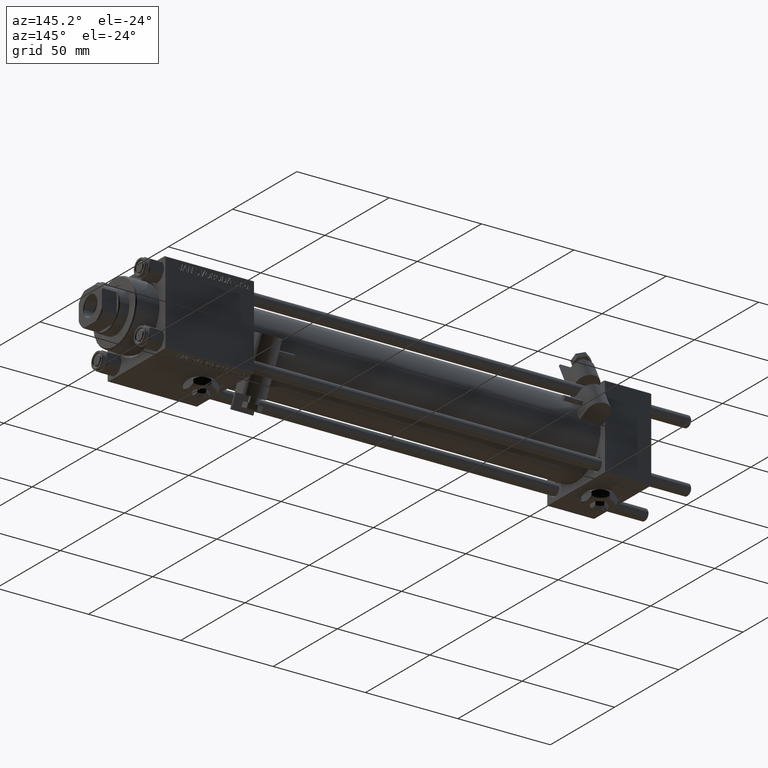
[diagram: clean part render]
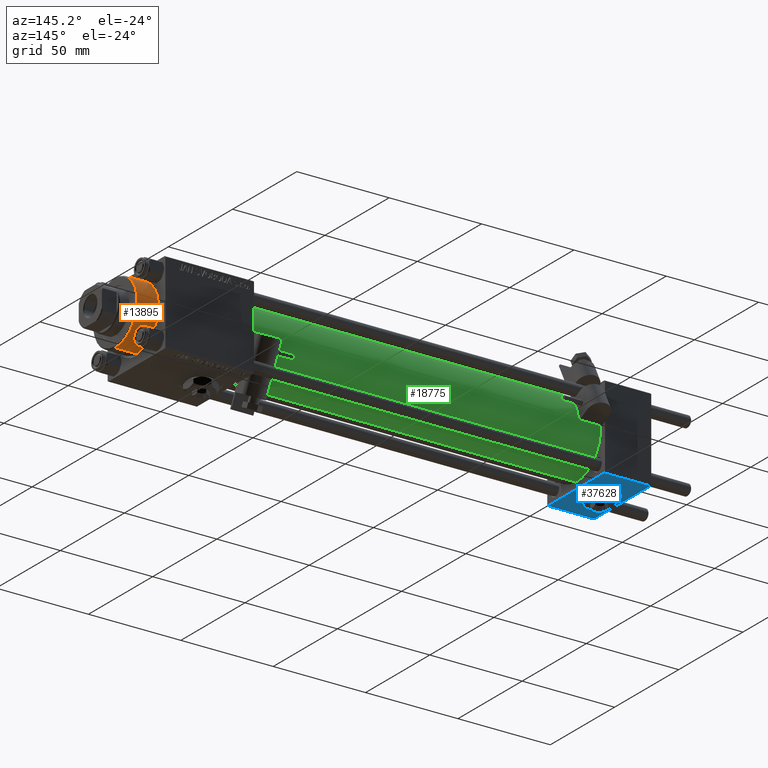
[diagram: same view with three faces highlighted in distinct colors, each labeled with its STEP entity id]
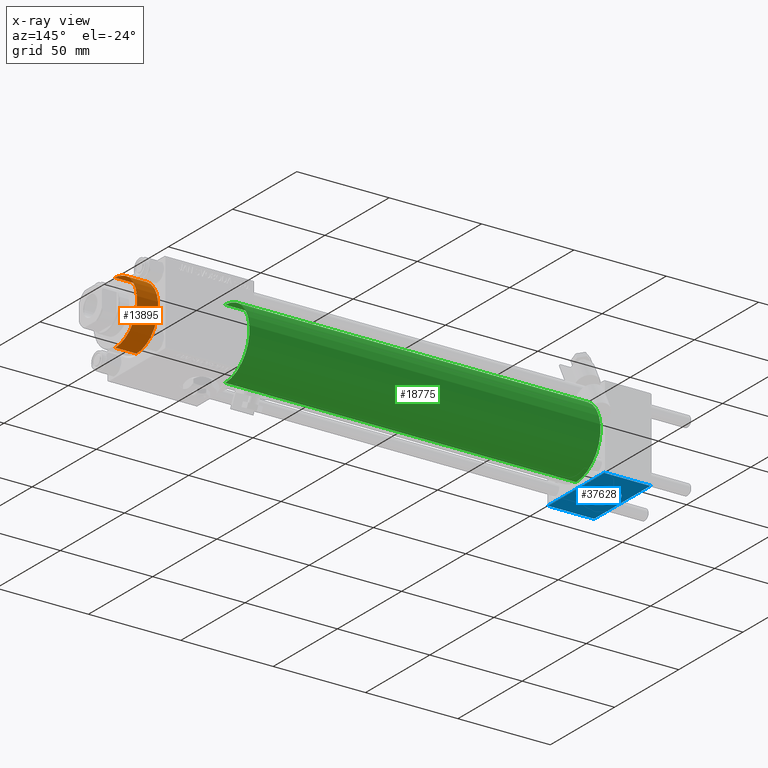
[diagram: x-ray of the same camera — body ghosted, the three highlighted faces saturated]
A machine part, auxiliary view with three faces highlighted in distinct colors.
The next image is the same camera in x-ray (body ghosted, the three faces saturated) — at least one of them is partly hidden behind the body in this view.
Their STEP definitions:

[orange] entity #13895 — the highlighted cylindrical surface (partial cylindrical patch) has radius 17 mm, axis along (-1, -0, 0).
#496 = CARTESIAN_POINT ( 'NONE',  ( -17.00000000000000000, 0.000000000000000000, 40.70000000000000284 ) ) ;
#3923 = EDGE_CURVE ( 'NONE', #50216, #13076, #45804, .T. ) ;
#4052 = CYLINDRICAL_SURFACE ( 'NONE', #18635, 17.00000000000000000 ) ;
#7762 = CARTESIAN_POINT ( 'NONE',  ( 17.00000000000000000, 2.081899558550500280E-15, 40.19999999999999574 ) ) ;
#8366 = ORIENTED_EDGE ( 'NONE', *, *, #37697, .T. ) ;
#10129 = VECTOR ( 'NONE', #40377, 1000.000000000000000 ) ;
#11126 = CARTESIAN_POINT ( 'NONE',  ( 17.00000000000000000, 2.081899558550500280E-15, 28.69999999999999929 ) ) ;
#11692 = CARTESIAN_POINT ( 'NONE',  ( 0.000000000000000000, 0.000000000000000000, 28.69999999999999929 ) ) ;
#13076 = VERTEX_POINT ( 'NONE', #39769 ) ;
#13895 = ADVANCED_FACE ( 'NONE', ( #48750 ), #4052, .T. ) ;
#15368 = VERTEX_POINT ( 'NONE', #46184 ) ;
#18387 = DIRECTION ( 'NONE',  ( 1.000000000000000000, 0.000000000000000000, 0.000000000000000000 ) ) ;
#18635 = AXIS2_PLACEMENT_3D ( 'NONE', #28408, #20645, #24388 ) ;
#19446 = DIRECTION ( 'NONE',  ( 0.000000000000000000, 0.000000000000000000, 1.000000000000000000 ) ) ;
#20645 = DIRECTION ( 'NONE',  ( -0.000000000000000000, -0.000000000000000000, -1.000000000000000000 ) ) ;
#23464 = DIRECTION ( 'NONE',  ( 1.000000000000000000, 0.000000000000000000, 0.000000000000000000 ) ) ;
#24388 = DIRECTION ( 'NONE',  ( -1.000000000000000000, 0.000000000000000000, 0.000000000000000000 ) ) ;
#25253 = CARTESIAN_POINT ( 'NONE',  ( 17.00000000000000000, 2.081899558550500280E-15, 40.70000000000000284 ) ) ;
#25779 = LINE ( 'NONE', #25253, #33015 ) ;
#26091 = VERTEX_POINT ( 'NONE', #7762 ) ;
#28408 = CARTESIAN_POINT ( 'NONE',  ( 0.000000000000000000, 0.000000000000000000, 40.70000000000000284 ) ) ;
#29464 = ORIENTED_EDGE ( 'NONE', *, *, #45122, .T. ) ;
#31641 = CIRCLE ( 'NONE', #38379, 17.00000000000000000 ) ;
#33015 = VECTOR ( 'NONE', #37027, 1000.000000000000000 ) ;
#34953 = CARTESIAN_POINT ( 'NONE',  ( 0.000000000000000000, 0.000000000000000000, 40.19999999999999574 ) ) ;
#37027 = DIRECTION ( 'NONE',  ( -0.000000000000000000, -0.000000000000000000, -1.000000000000000000 ) ) ;
#37697 = EDGE_CURVE ( 'NONE', #26091, #50216, #25779, .T. ) ;
#38379 = AXIS2_PLACEMENT_3D ( 'NONE', #34953, #43804, #18387 ) ;
#39769 = CARTESIAN_POINT ( 'NONE',  ( -17.00000000000000000, 0.000000000000000000, 28.69999999999999929 ) ) ;
#39794 = AXIS2_PLACEMENT_3D ( 'NONE', #11692, #19446, #23464 ) ;
#40107 = EDGE_CURVE ( 'NONE', #15368, #13076, #44407, .T. ) ;
#40377 = DIRECTION ( 'NONE',  ( -0.000000000000000000, -0.000000000000000000, -1.000000000000000000 ) ) ;
#43804 = DIRECTION ( 'NONE',  ( 0.000000000000000000, 0.000000000000000000, -1.000000000000000000 ) ) ;
#44295 = EDGE_LOOP ( 'NONE', ( #29464, #8366, #51937, #48668 ) ) ;
#44407 = LINE ( 'NONE', #496, #10129 ) ;
#45122 = EDGE_CURVE ( 'NONE', #15368, #26091, #31641, .T. ) ;
#45804 = CIRCLE ( 'NONE', #39794, 17.00000000000000000 ) ;
#46184 = CARTESIAN_POINT ( 'NONE',  ( -17.00000000000000000, 0.000000000000000000, 40.19999999999999574 ) ) ;
#48668 = ORIENTED_EDGE ( 'NONE', *, *, #40107, .F. ) ;
#48750 = FACE_OUTER_BOUND ( 'NONE', #44295, .T. ) ;
#50216 = VERTEX_POINT ( 'NONE', #11126 ) ;
#51937 = ORIENTED_EDGE ( 'NONE', *, *, #3923, .T. ) ;

[blue] entity #37628 — the highlighted planar face has unit normal (0, 0, -1).
#1157 = LINE ( 'NONE', #30042, #8363 ) ;
#2189 = VERTEX_POINT ( 'NONE', #7006 ) ;
#2364 = LINE ( 'NONE', #7436, #15012 ) ;
#2779 = CARTESIAN_POINT ( 'NONE',  ( 12.50000000000000000, 5.035636875936204037E-15, -22.50000000000000000 ) ) ;
#3398 = EDGE_CURVE ( 'NONE', #33854, #20286, #4747, .T. ) ;
#4058 = EDGE_CURVE ( 'NONE', #40201, #11606, #2364, .T. ) ;
#4747 = CIRCLE ( 'NONE', #20144, 10.00000000000000178 ) ;
#6678 = DIRECTION ( 'NONE',  ( 0.000000000000000000, -1.734723475976806848E-16, -1.000000000000000000 ) ) ;
#7006 = CARTESIAN_POINT ( 'NONE',  ( 0.000000000000000000, 21.99999999999999289, -22.49999999999999645 ) ) ;
#7020 = DIRECTION ( 'NONE',  ( 1.000000000000000000, 0.000000000000000000, 0.000000000000000000 ) ) ;
#7436 = CARTESIAN_POINT ( 'NONE',  ( 0.000000000000000000, -21.99999999999998579, -22.50000000000000711 ) ) ;
#8363 = VECTOR ( 'NONE', #50397, 1000.000000000000000 ) ;
#9401 = AXIS2_PLACEMENT_3D ( 'NONE', #2779, #19095, #46686 ) ;
#10136 = VECTOR ( 'NONE', #7020, 1000.000000000000000 ) ;
#10709 = CARTESIAN_POINT ( 'NONE',  ( 0.000000000000000000, -21.99999999999997158, -22.50000000000000711 ) ) ;
#11606 = VERTEX_POINT ( 'NONE', #10709 ) ;
#12420 = FACE_BOUND ( 'NONE', #13319, .T. ) ;
#13319 = EDGE_LOOP ( 'NONE', ( #21424, #30996 ) ) ;
#13572 = CARTESIAN_POINT ( 'NONE',  ( 25.00000000000000000, 21.99999999999999289, -22.49999999999999645 ) ) ;
#13590 = EDGE_CURVE ( 'NONE', #2189, #11606, #1157, .T. ) ;
#13901 = LINE ( 'NONE', #24423, #35388 ) ;
#14570 = EDGE_CURVE ( 'NONE', #2189, #28048, #23071, .T. ) ;
#15012 = VECTOR ( 'NONE', #23757, 1000.000000000000000 ) ;
#15035 = CARTESIAN_POINT ( 'NONE',  ( 25.00000000000000000, 21.99999999999999289, -22.49999999999999645 ) ) ;
#15952 = EDGE_LOOP ( 'NONE', ( #43975, #23185, #31183, #33112 ) ) ;
#18591 = CARTESIAN_POINT ( 'NONE',  ( 25.00000000000000000, -21.99999999999997158, -22.50000000000000711 ) ) ;
#19095 = DIRECTION ( 'NONE',  ( 0.000000000000000000, -1.734723475976806848E-16, -1.000000000000000000 ) ) ;
#20144 = AXIS2_PLACEMENT_3D ( 'NONE', #43346, #6678, #22993 ) ;
#20286 = VERTEX_POINT ( 'NONE', #52768 ) ;
#21424 = ORIENTED_EDGE ( 'NONE', *, *, #44412, .F. ) ;
#21775 = CARTESIAN_POINT ( 'NONE',  ( 12.50000000000000178, -9.999999999999996447, -22.50000000000000000 ) ) ;
#22993 = DIRECTION ( 'NONE',  ( 0.000000000000000000, 1.000000000000000000, 0.000000000000000000 ) ) ;
#23071 = LINE ( 'NONE', #15035, #10136 ) ;
#23185 = ORIENTED_EDGE ( 'NONE', *, *, #14570, .T. ) ;
#23757 = DIRECTION ( 'NONE',  ( -1.000000000000000000, 0.000000000000000000, 0.000000000000000000 ) ) ;
#24423 = CARTESIAN_POINT ( 'NONE',  ( 25.00000000000000000, 22.50000000000000000, -22.49999999999999645 ) ) ;
#24782 = CIRCLE ( 'NONE', #9401, 10.00000000000000178 ) ;
#27667 = EDGE_CURVE ( 'NONE', #28048, #40201, #13901, .T. ) ;
#27682 = PLANE ( 'NONE',  #32183 ) ;
#28048 = VERTEX_POINT ( 'NONE', #13572 ) ;
#30042 = CARTESIAN_POINT ( 'NONE',  ( 0.000000000000000000, 22.50000000000000000, -22.49999999999999645 ) ) ;
#30996 = ORIENTED_EDGE ( 'NONE', *, *, #3398, .F. ) ;
#31183 = ORIENTED_EDGE ( 'NONE', *, *, #27667, .T. ) ;
#31954 = DIRECTION ( 'NONE',  ( 0.000000000000000000, 1.000000000000000000, 2.312964634635742957E-16 ) ) ;
#32183 = AXIS2_PLACEMENT_3D ( 'NONE', #48557, #32745, #31954 ) ;
#32745 = DIRECTION ( 'NONE',  ( 0.000000000000000000, 2.312964634635742957E-16, -1.000000000000000000 ) ) ;
#33112 = ORIENTED_EDGE ( 'NONE', *, *, #4058, .T. ) ;
#33854 = VERTEX_POINT ( 'NONE', #21775 ) ;
#35388 = VECTOR ( 'NONE', #48783, 1000.000000000000000 ) ;
#37628 = ADVANCED_FACE ( 'NONE', ( #12420, #44804 ), #27682, .T. ) ;
#40201 = VERTEX_POINT ( 'NONE', #18591 ) ;
#43346 = CARTESIAN_POINT ( 'NONE',  ( 12.50000000000000000, 5.035636875936204037E-15, -22.50000000000000000 ) ) ;
#43975 = ORIENTED_EDGE ( 'NONE', *, *, #13590, .F. ) ;
#44412 = EDGE_CURVE ( 'NONE', #20286, #33854, #24782, .T. ) ;
#44804 = FACE_OUTER_BOUND ( 'NONE', #15952, .T. ) ;
#46686 = DIRECTION ( 'NONE',  ( 0.000000000000000000, 1.000000000000000000, 0.000000000000000000 ) ) ;
#48557 = CARTESIAN_POINT ( 'NONE',  ( 25.00000000000000000, 22.50000000000000000, -22.49999999999999645 ) ) ;
#48783 = DIRECTION ( 'NONE',  ( 0.000000000000000000, -1.000000000000000000, -2.312964634635742957E-16 ) ) ;
#50397 = DIRECTION ( 'NONE',  ( 0.000000000000000000, -1.000000000000000000, -2.312964634635742957E-16 ) ) ;
#52768 = CARTESIAN_POINT ( 'NONE',  ( 12.50000000000000000, 10.00000000000000711, -22.50000000000000000 ) ) ;

[green] entity #18775 — the highlighted cylindrical surface (partial cylindrical patch) has radius 19 mm, axis along (-1, -0, -0).
#504 = DIRECTION ( 'NONE',  ( -1.000000000000000000, -0.000000000000000000, -0.000000000000000000 ) ) ;
#521 = CARTESIAN_POINT ( 'NONE',  ( 24.99999999999999289, 0.000000000000000000, 0.000000000000000000 ) ) ;
#2271 = ORIENTED_EDGE ( 'NONE', *, *, #28462, .F. ) ;
#3648 = DIRECTION ( 'NONE',  ( -1.000000000000000000, -0.000000000000000000, -0.000000000000000000 ) ) ;
#4274 = DIRECTION ( 'NONE',  ( 0.000000000000000000, 0.000000000000000000, 1.000000000000000000 ) ) ;
#4317 = EDGE_CURVE ( 'NONE', #8965, #31070, #17589, .T. ) ;
#4784 = FACE_OUTER_BOUND ( 'NONE', #8650, .T. ) ;
#8650 = EDGE_LOOP ( 'NONE', ( #11207, #40857, #43723, #2271 ) ) ;
#8965 = VERTEX_POINT ( 'NONE', #11083 ) ;
#9227 = DIRECTION ( 'NONE',  ( -1.000000000000000000, -0.000000000000000000, -0.000000000000000000 ) ) ;
#11083 = CARTESIAN_POINT ( 'NONE',  ( 215.0000000000000000, 2.326828918379970970E-15, -19.00000000000000000 ) ) ;
#11207 = ORIENTED_EDGE ( 'NONE', *, *, #4317, .F. ) ;
#14111 = VERTEX_POINT ( 'NONE', #29387 ) ;
#14433 = VECTOR ( 'NONE', #3648, 1000.000000000000000 ) ;
#14983 = EDGE_CURVE ( 'NONE', #8965, #18848, #23986, .T. ) ;
#16205 = DIRECTION ( 'NONE',  ( 1.000000000000000000, 0.000000000000000000, 0.000000000000000000 ) ) ;
#17124 = AXIS2_PLACEMENT_3D ( 'NONE', #521, #24341, #4274 ) ;
#17532 = LINE ( 'NONE', #28769, #50824 ) ;
#17589 = CIRCLE ( 'NONE', #26134, 19.00000000000000000 ) ;
#18775 = ADVANCED_FACE ( 'NONE', ( #4784 ), #49737, .T. ) ;
#18848 = VERTEX_POINT ( 'NONE', #49204 ) ;
#20313 = DIRECTION ( 'NONE',  ( 0.000000000000000000, 0.000000000000000000, 1.000000000000000000 ) ) ;
#23986 = LINE ( 'NONE', #40297, #14433 ) ;
#24341 = DIRECTION ( 'NONE',  ( 1.000000000000000000, -0.000000000000000000, 0.000000000000000000 ) ) ;
#26134 = AXIS2_PLACEMENT_3D ( 'NONE', #44310, #16205, #36263 ) ;
#28462 = EDGE_CURVE ( 'NONE', #31070, #14111, #17532, .T. ) ;
#28769 = CARTESIAN_POINT ( 'NONE',  ( 215.0000000000000000, 0.000000000000000000, 19.00000000000000000 ) ) ;
#29387 = CARTESIAN_POINT ( 'NONE',  ( 24.99999999999999289, 0.000000000000000000, 19.00000000000000000 ) ) ;
#31070 = VERTEX_POINT ( 'NONE', #47073 ) ;
#36263 = DIRECTION ( 'NONE',  ( 0.000000000000000000, 0.000000000000000000, -1.000000000000000000 ) ) ;
#40297 = CARTESIAN_POINT ( 'NONE',  ( 215.0000000000000000, 2.326828918379970970E-15, -19.00000000000000000 ) ) ;
#40857 = ORIENTED_EDGE ( 'NONE', *, *, #14983, .T. ) ;
#43723 = ORIENTED_EDGE ( 'NONE', *, *, #48719, .T. ) ;
#44310 = CARTESIAN_POINT ( 'NONE',  ( 215.0000000000000000, 0.000000000000000000, 0.000000000000000000 ) ) ;
#44678 = CARTESIAN_POINT ( 'NONE',  ( 215.0000000000000000, 0.000000000000000000, 0.000000000000000000 ) ) ;
#47073 = CARTESIAN_POINT ( 'NONE',  ( 215.0000000000000000, 0.000000000000000000, 19.00000000000000000 ) ) ;
#48623 = CIRCLE ( 'NONE', #17124, 19.00000000000000000 ) ;
#48719 = EDGE_CURVE ( 'NONE', #18848, #14111, #48623, .T. ) ;
#49204 = CARTESIAN_POINT ( 'NONE',  ( 24.99999999999999289, 2.326828918379970970E-15, -19.00000000000000000 ) ) ;
#49737 = CYLINDRICAL_SURFACE ( 'NONE', #50575, 19.00000000000000000 ) ;
#50575 = AXIS2_PLACEMENT_3D ( 'NONE', #44678, #504, #20313 ) ;
#50824 = VECTOR ( 'NONE', #9227, 1000.000000000000000 ) ;